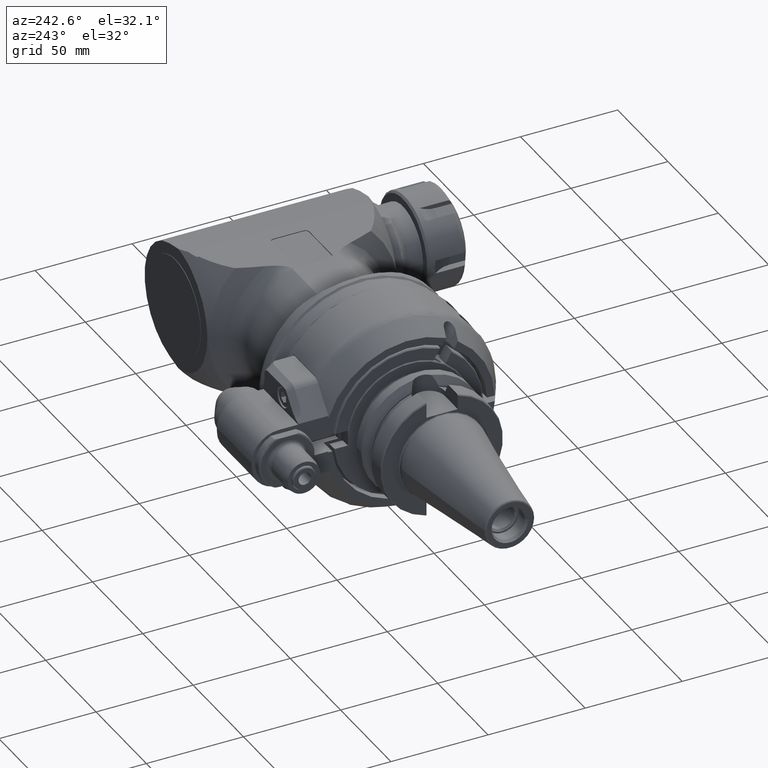
[diagram: clean part render]
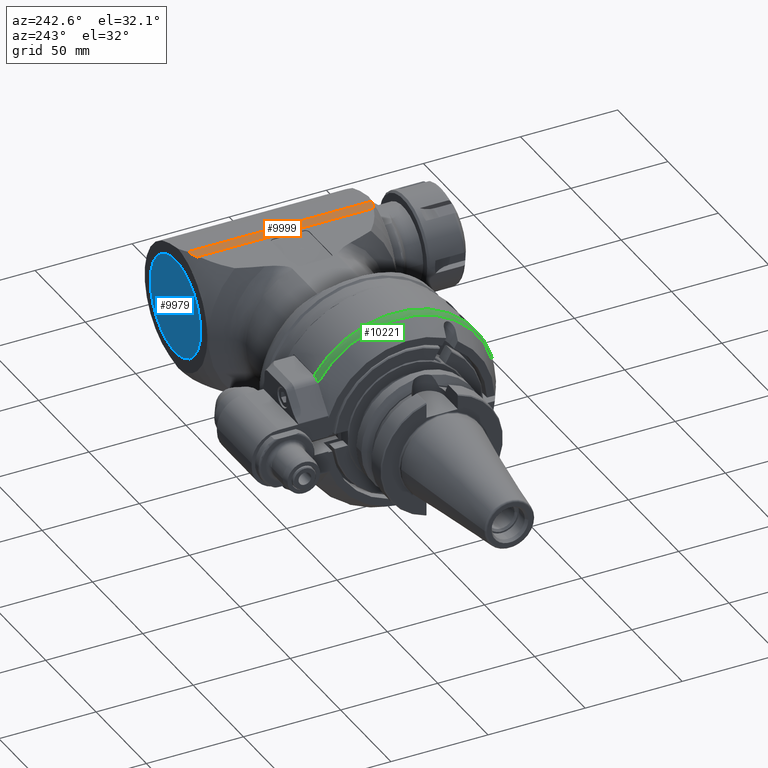
[diagram: same view with three faces highlighted in distinct colors, each labeled with its STEP entity id]
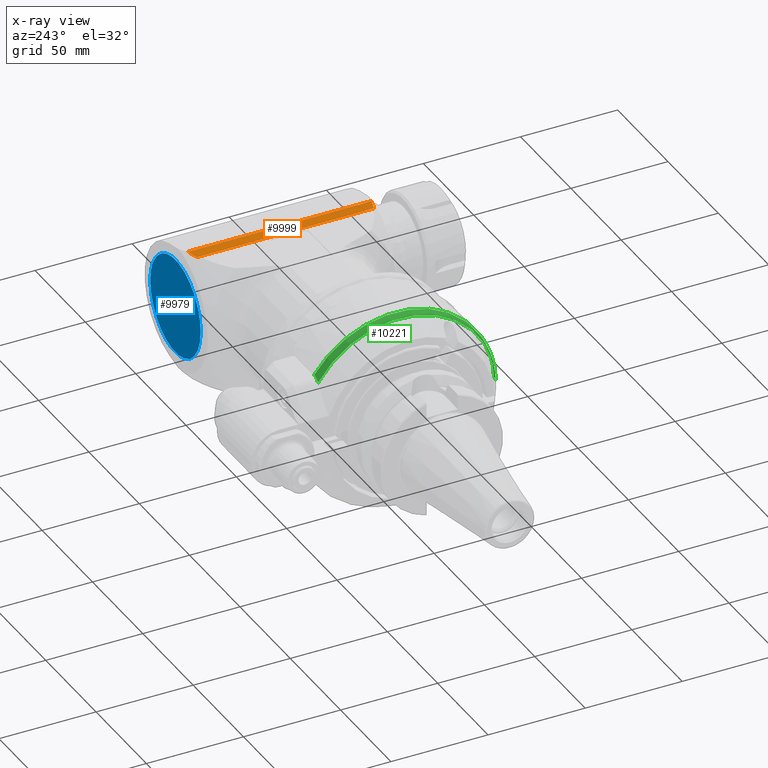
[diagram: x-ray of the same camera — body ghosted, the three highlighted faces saturated]
A machine part, auxiliary view with three faces highlighted in distinct colors.
The next image is the same camera in x-ray (body ghosted, the three faces saturated) — at least one of them is partly hidden behind the body in this view.
Their STEP definitions:

[orange] entity #9999 — the highlighted planar face has unit normal (0, -0, 1).
#211=(
BOUNDED_CURVE()
B_SPLINE_CURVE(2,(#14475,#14476,#14477),.UNSPECIFIED.,.F.,.F.)
B_SPLINE_CURVE_WITH_KNOTS((3,3),(-0.607947298853301,-0.322101731690124),
 .UNSPECIFIED.)
CURVE()
GEOMETRIC_REPRESENTATION_ITEM()
RATIONAL_B_SPLINE_CURVE((1.00009005117698,1.00009837307384,1.00007896169617))
REPRESENTATION_ITEM('')
);
#212=(
BOUNDED_CURVE()
B_SPLINE_CURVE(2,(#14479,#14480,#14481),.UNSPECIFIED.,.F.,.F.)
B_SPLINE_CURVE_WITH_KNOTS((3,3),(-0.730590504987566,-0.39177109460823),
 .UNSPECIFIED.)
CURVE()
GEOMETRIC_REPRESENTATION_ITEM()
RATIONAL_B_SPLINE_CURVE((1.00016711534131,1.00022218586518,1.00019023504752))
REPRESENTATION_ITEM('')
);
#213=(
BOUNDED_CURVE()
B_SPLINE_CURVE(2,(#14485,#14486,#14487),.UNSPECIFIED.,.F.,.F.)
B_SPLINE_CURVE_WITH_KNOTS((3,3),(-0.640573446084585,-0.301754035705249),
 .UNSPECIFIED.)
CURVE()
GEOMETRIC_REPRESENTATION_ITEM()
RATIONAL_B_SPLINE_CURVE((1.00019023504752,1.00022218586518,1.00016711534131))
REPRESENTATION_ITEM('')
);
#214=(
BOUNDED_CURVE()
B_SPLINE_CURVE(2,(#14488,#14489,#14490),.UNSPECIFIED.,.F.,.F.)
B_SPLINE_CURVE_WITH_KNOTS((3,3),(-0.722246052014529,-0.436400485368046),
 .UNSPECIFIED.)
CURVE()
GEOMETRIC_REPRESENTATION_ITEM()
RATIONAL_B_SPLINE_CURVE((1.00007896167667,1.00009837305889,1.00009005116564))
REPRESENTATION_ITEM('')
);
#735=LINE('',#14456,#1494);
#737=LINE('',#14483,#1496);
#1494=VECTOR('',#11640,94.37971460824);
#1496=VECTOR('',#11650,91.0411959255);
#2367=FACE_OUTER_BOUND('',#2920,.T.);
#2920=EDGE_LOOP('',(#6715,#6716,#6717,#6718,#6719,#6720));
#3987=VERTEX_POINT('',#14454);
#3988=VERTEX_POINT('',#14455);
#3993=VERTEX_POINT('',#14474);
#3994=VERTEX_POINT('',#14478);
#3995=VERTEX_POINT('',#14482);
#3996=VERTEX_POINT('',#14484);
#5106=EDGE_CURVE('',#3987,#3988,#735,.T.);
#5113=EDGE_CURVE('',#3993,#3987,#211,.T.);
#5114=EDGE_CURVE('',#3994,#3993,#212,.T.);
#5115=EDGE_CURVE('',#3994,#3995,#737,.T.);
#5116=EDGE_CURVE('',#3996,#3995,#213,.T.);
#5117=EDGE_CURVE('',#3988,#3996,#214,.T.);
#6715=ORIENTED_EDGE('',*,*,#5106,.F.);
#6716=ORIENTED_EDGE('',*,*,#5113,.F.);
#6717=ORIENTED_EDGE('',*,*,#5114,.F.);
#6718=ORIENTED_EDGE('',*,*,#5115,.T.);
#6719=ORIENTED_EDGE('',*,*,#5116,.F.);
#6720=ORIENTED_EDGE('',*,*,#5117,.F.);
#9735=PLANE('',#10632);
#9999=ADVANCED_FACE('',(#2367),#9735,.T.);
#10632=AXIS2_PLACEMENT_3D('',#14473,#11648,#11649);
#11640=DIRECTION('',(0.,-1.,0.));
#11648=DIRECTION('center_axis',(0.,0.,1.));
#11649=DIRECTION('ref_axis',(1.,0.,0.));
#11650=DIRECTION('',(0.,-1.,0.));
#14454=CARTESIAN_POINT('',(269.5597530195,47.18985730412,33.5));
#14455=CARTESIAN_POINT('',(269.5597530195,-47.18985730412,33.5));
#14456=CARTESIAN_POINT('',(269.5597530195,47.18985730412,33.5));
#14473=CARTESIAN_POINT('Origin',(235.58038714,-5.090066406207E-13,33.5));
#14474=CARTESIAN_POINT('',(266.7592494226,46.58295707889,33.49999999999));
#14475=CARTESIAN_POINT('Ctrl Pts',(266.759249422601,46.5829570788813,33.5));
#14476=CARTESIAN_POINT('Ctrl Pts',(268.150438753035,46.8851070133405,33.5));
#14477=CARTESIAN_POINT('Ctrl Pts',(269.5597530195,47.1898573041089,33.5));
#14478=CARTESIAN_POINT('',(263.5530967692,45.52059796275,33.5));
#14479=CARTESIAN_POINT('Ctrl Pts',(263.553096769196,45.520597962725,33.5));
#14480=CARTESIAN_POINT('Ctrl Pts',(265.137682574565,46.0477710045474,33.5));
#14481=CARTESIAN_POINT('Ctrl Pts',(266.759249422606,46.5829570788707,33.5));
#14482=CARTESIAN_POINT('',(263.5530967692,-45.52059796275,33.49999999999));
#14483=CARTESIAN_POINT('',(263.5530967692,45.52059796275,33.5));
#14484=CARTESIAN_POINT('',(266.7592494226,-46.58295707889,33.49999999999));
#14485=CARTESIAN_POINT('Ctrl Pts',(266.759249422606,-46.5829570788707,33.5));
#14486=CARTESIAN_POINT('Ctrl Pts',(265.137682574565,-46.0477710045474,33.5));
#14487=CARTESIAN_POINT('Ctrl Pts',(263.553096769196,-45.520597962725,33.5));
#14488=CARTESIAN_POINT('Ctrl Pts',(269.5597530195,-47.1898573041089,33.5));
#14489=CARTESIAN_POINT('Ctrl Pts',(268.150438753025,-46.8851070133383,33.5));
#14490=CARTESIAN_POINT('Ctrl Pts',(266.759249422601,-46.5829570788814,33.5));

[blue] entity #9979 — the highlighted planar face has unit normal (-0, 1, 0).
#2347=FACE_OUTER_BOUND('',#2895,.T.);
#2895=EDGE_LOOP('',(#6594));
#3524=CIRCLE('',#10590,25.);
#3919=VERTEX_POINT('',#14164);
#5024=EDGE_CURVE('',#3919,#3919,#3524,.T.);
#6594=ORIENTED_EDGE('',*,*,#5024,.T.);
#9722=PLANE('',#10591);
#9979=ADVANCED_FACE('',(#2347),#9722,.T.);
#10590=AXIS2_PLACEMENT_3D('',#14165,#11533,#11534);
#10591=AXIS2_PLACEMENT_3D('',#14167,#11536,#11537);
#11533=DIRECTION('center_axis',(0.,1.,0.));
#11534=DIRECTION('ref_axis',(-1.,0.,0.));
#11536=DIRECTION('center_axis',(0.,1.,0.));
#11537=DIRECTION('ref_axis',(-1.,0.,0.));
#14164=CARTESIAN_POINT('',(303.063097,49.2,-3.06161699786838E-15));
#14165=CARTESIAN_POINT('Origin',(278.063097,49.2,0.));
#14167=CARTESIAN_POINT('Origin',(0.,49.2,0.));

[green] entity #10221 — the highlighted toroidal blend (fillet) surface has major radius 43 mm and minor (blend) radius 8 mm.
#490=B_SPLINE_CURVE_WITH_KNOTS('',3,(#20704,#20705,#20706,#20707,#20708,
#20709,#20710,#20711,#20712,#20713),.UNSPECIFIED.,.F.,.F.,(4,2,2,2,4),(-9.68559804021147,
-9.63577634006454,-9.4843525606202,-9.37005770955715,-9.2557628584941),
 .UNSPECIFIED.);
#505=B_SPLINE_CURVE_WITH_KNOTS('',3,(#21023,#21024,#21025,#21026,#21027,
#21028,#21029,#21030),.UNSPECIFIED.,.F.,.F.,(4,2,2,4),(4.34441023881693,
4.44441523838835,4.59248867498487,4.74056211158139),.UNSPECIFIED.);
#508=B_SPLINE_CURVE_WITH_KNOTS('',3,(#21062,#21063,#21064,#21065,#21066,
#21067,#21068,#21069,#21070,#21071,#21072,#21073,#21074,#21075,#21076,#21077),
 .UNSPECIFIED.,.F.,.F.,(4,3,3,3,3,4),(-9.34472443709596,-9.15576581563747,
-8.53592281537668,-8.19749167718073,-7.91960616501336,-7.85473194545352),
 .UNSPECIFIED.);
#594=TOROIDAL_SURFACE('',#11010,43.,8.);
#2589=FACE_OUTER_BOUND('',#3178,.T.);
#3178=EDGE_LOOP('',(#8238,#8239,#8240,#8241,#8242,#8243));
#3678=CIRCLE('',#10964,51.);
#3679=CIRCLE('',#10965,51.);
#3700=CIRCLE('',#11007,49.92820323028);
#4492=VERTEX_POINT('',#20669);
#4502=VERTEX_POINT('',#20700);
#4507=VERTEX_POINT('',#20724);
#4509=VERTEX_POINT('',#20733);
#4510=VERTEX_POINT('',#20760);
#4550=VERTEX_POINT('',#21011);
#5787=EDGE_CURVE('',#4502,#4492,#490,.T.);
#5793=EDGE_CURVE('',#4507,#4492,#3678,.T.);
#5796=EDGE_CURVE('',#4510,#4509,#3679,.T.);
#5859=EDGE_CURVE('',#4550,#4510,#505,.T.);
#5862=EDGE_CURVE('',#4502,#4550,#3700,.T.);
#5867=EDGE_CURVE('',#4509,#4507,#508,.T.);
#8238=ORIENTED_EDGE('',*,*,#5862,.T.);
#8239=ORIENTED_EDGE('',*,*,#5859,.T.);
#8240=ORIENTED_EDGE('',*,*,#5796,.T.);
#8241=ORIENTED_EDGE('',*,*,#5867,.T.);
#8242=ORIENTED_EDGE('',*,*,#5793,.T.);
#8243=ORIENTED_EDGE('',*,*,#5787,.F.);
#10221=ADVANCED_FACE('',(#2589),#594,.T.);
#10964=AXIS2_PLACEMENT_3D('',#20725,#12675,#12676);
#10965=AXIS2_PLACEMENT_3D('',#20761,#12677,#12678);
#11007=AXIS2_PLACEMENT_3D('',#21036,#12791,#12792);
#11010=AXIS2_PLACEMENT_3D('',#21061,#12797,#12798);
#12675=DIRECTION('center_axis',(-1.,0.,0.));
#12676=DIRECTION('ref_axis',(0.,-0.711205879844998,0.702983781088798));
#12677=DIRECTION('center_axis',(-1.,0.,0.));
#12678=DIRECTION('ref_axis',(0.,-0.999567380468613,0.0294117647058804));
#12791=DIRECTION('center_axis',(1.,0.,0.));
#12792=DIRECTION('ref_axis',(0.,0.836200730225418,0.548423503116412));
#12797=DIRECTION('center_axis',(1.,0.,0.));
#12798=DIRECTION('ref_axis',(0.,-1.,0.));
#20669=CARTESIAN_POINT('',(-37.23205080757,41.75,29.29057015492));
#20700=CARTESIAN_POINT('',(-41.23205080757,41.75,27.38180011986));
#20704=CARTESIAN_POINT('Ctrl Pts',(-41.2320508075675,41.75,27.3818001198576));
#20705=CARTESIAN_POINT('Ctrl Pts',(-41.1084978721799,41.75,27.5118698927609));
#20706=CARTESIAN_POINT('Ctrl Pts',(-40.9796012581369,41.75,27.63883358715));
#20707=CARTESIAN_POINT('Ctrl Pts',(-40.4412749376929,41.75,28.1311886381695));
#20708=CARTESIAN_POINT('Ctrl Pts',(-39.9932266664163,41.75,28.4521983127449));
#20709=CARTESIAN_POINT('Ctrl Pts',(-39.2119237728328,41.75,28.8694287521605));
#20710=CARTESIAN_POINT('Ctrl Pts',(-38.8258618631201,41.75,29.0288082766981));
#20711=CARTESIAN_POINT('Ctrl Pts',(-38.0264941442551,41.75,29.2396724058848));
#20712=CARTESIAN_POINT('Ctrl Pts',(-37.6130336444468,41.75,29.290570154915));
#20713=CARTESIAN_POINT('Ctrl Pts',(-37.23205080757,41.75,29.290570154915));
#20724=CARTESIAN_POINT('',(-37.23205080757,-36.27149987209,35.85217283553));
#20725=CARTESIAN_POINT('Origin',(-37.23205080757,0.,0.));
#20733=CARTESIAN_POINT('',(-37.23205080757,-45.1718026933,23.67505525733));
#20760=CARTESIAN_POINT('',(-37.2320508231036,-50.9779364044793,1.499999980309));
#20761=CARTESIAN_POINT('Origin',(-37.23205080757,0.,0.));
#21011=CARTESIAN_POINT('',(-41.2320587089715,-49.9056612221311,1.50000006858959));
#21023=CARTESIAN_POINT('Ctrl Pts',(-41.2320587100669,-49.9056612240274,
1.5));
#21024=CARTESIAN_POINT('Ctrl Pts',(-40.9199628642827,-50.0859316928166,
1.5));
#21025=CARTESIAN_POINT('Ctrl Pts',(-40.6009646113261,-50.2413262775005,
1.5));
#21026=CARTESIAN_POINT('Ctrl Pts',(-39.8370100654999,-50.5578441661684,
1.5));
#21027=CARTESIAN_POINT('Ctrl Pts',(-39.3203684112507,-50.7191785472564,
1.5));
#21028=CARTESIAN_POINT('Ctrl Pts',(-38.2646778846743,-50.9292248693063,
1.5));
#21029=CARTESIAN_POINT('Ctrl Pts',(-37.7256289314938,-50.9779364038993,
1.5));
#21030=CARTESIAN_POINT('Ctrl Pts',(-37.23205080757,-50.9779364038993,1.5));
#21036=CARTESIAN_POINT('Origin',(-41.23205080757,0.,0.));
#21061=CARTESIAN_POINT('Origin',(-37.23205080757,0.,0.));
#21062=CARTESIAN_POINT('Ctrl Pts',(-37.2320508075727,-45.1718026933004,
23.6750552573282));
#21063=CARTESIAN_POINT('Ctrl Pts',(-37.6059523067415,-44.9002459459361,
24.1931832058645));
#21064=CARTESIAN_POINT('Ctrl Pts',(-37.9420066961396,-44.583821938807,24.718802925503));
#21065=CARTESIAN_POINT('Ctrl Pts',(-38.2317635357579,-44.2347948006096,
25.2564932996317));
#21066=CARTESIAN_POINT('Ctrl Pts',(-39.1822560162215,-43.0898773216244,
27.0202848225526));
#21067=CARTESIAN_POINT('Ctrl Pts',(-39.5913735244697,-41.6682943531802,
28.8794189915673));
#21068=CARTESIAN_POINT('Ctrl Pts',(-39.4830876369283,-40.2906640836273,
30.7375607372434));
#21069=CARTESIAN_POINT('Ctrl Pts',(-39.4239640908758,-39.5384849351303,
31.7520967175706));
#21070=CARTESIAN_POINT('Ctrl Pts',(-39.2001167152273,-38.7666121290655,
32.7926546956175));
#21071=CARTESIAN_POINT('Ctrl Pts',(-38.8239051275744,-38.0796938038292,
33.6844936512119));
#21072=CARTESIAN_POINT('Ctrl Pts',(-38.5149981213353,-37.5156657665659,
34.4167818391937));
#21073=CARTESIAN_POINT('Ctrl Pts',(-38.1276341386855,-37.0238735561015,
35.0318289883221));
#21074=CARTESIAN_POINT('Ctrl Pts',(-37.6160859153108,-36.5775081079181,
35.5266834858267));
#21075=CARTESIAN_POINT('Ctrl Pts',(-37.4966615829668,-36.4733011276279,
35.6422105569248));
#21076=CARTESIAN_POINT('Ctrl Pts',(-37.368565930287,-36.3706479171666,35.751865154858));
#21077=CARTESIAN_POINT('Ctrl Pts',(-37.2320508075659,-36.2714998720946,
35.8521728355289));